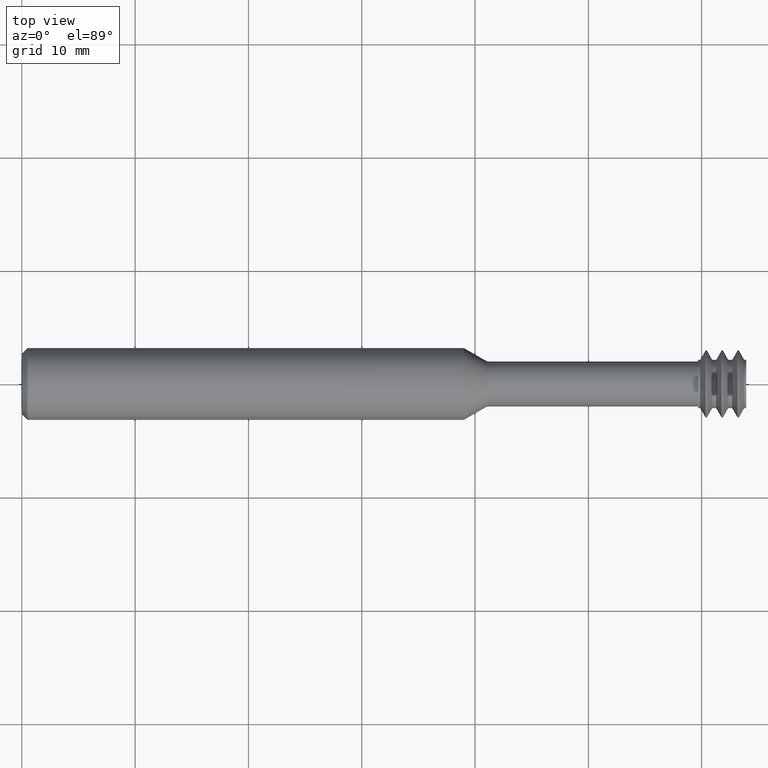
[diagram: clean part render]
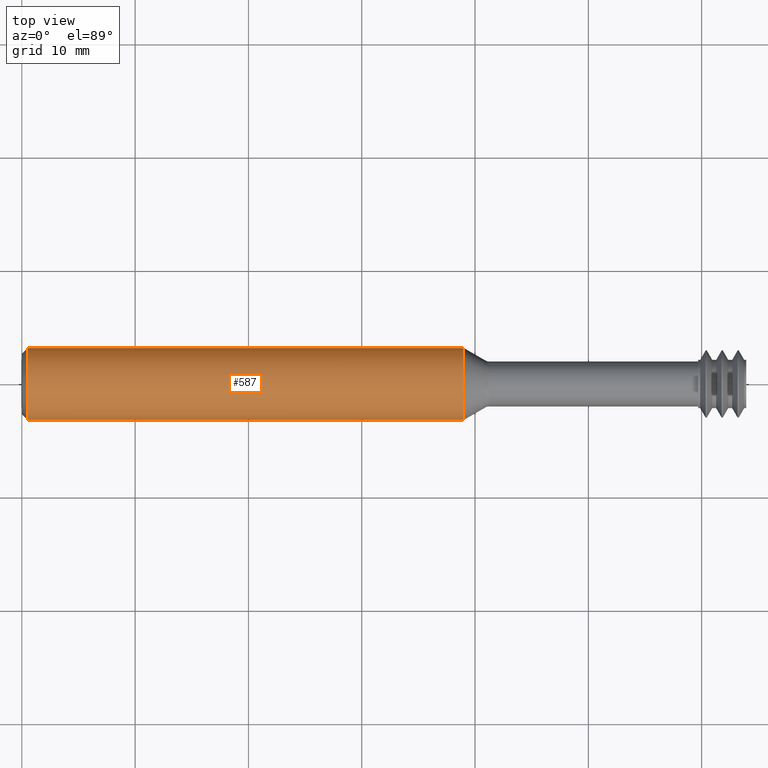
[diagram: same view with one face highlighted and labeled with its STEP entity id]
A machine part, top view. The second image highlights one B-rep face of the part: STEP entity #587.
In plain terms, the highlighted cylindrical surface (edge-blend (fillet) strip) has radius 3.1712 mm, axis along (-1, 0, -0).
Its self-contained STEP definition (entity closure, byte-faithful):
#26 = AXIS2_PLACEMENT_3D ( 'NONE', #208, #594, #847 ) ;
#70 = DIRECTION ( 'NONE',  ( -1.000000000000000000, 2.239313081137374464E-19, -0.000000000000000000 ) ) ;
#92 = CYLINDRICAL_SURFACE ( 'NONE', #820, 0.1248500000000000026 ) ;
#96 = DIRECTION ( 'NONE',  ( -1.000000000000000000, 2.239313081137374464E-19, -0.000000000000000000 ) ) ;
#102 = CARTESIAN_POINT ( 'NONE',  ( 1.535853419665399011, 0.1248500000000000026, 1.528971528735470422E-17 ) ) ;
#122 = EDGE_CURVE ( 'NONE', #505, #201, #393, .T. ) ;
#184 = ORIENTED_EDGE ( 'NONE', *, *, #921, .T. ) ;
#201 = VERTEX_POINT ( 'NONE', #246 ) ;
#208 = CARTESIAN_POINT ( 'NONE',  ( 0.02000000000000005940, -2.040747565273492847E-19, 0.000000000000000000 ) ) ;
#246 = CARTESIAN_POINT ( 'NONE',  ( 0.02000000000000005940, -0.1248500000000000026, 1.528971528735470422E-17 ) ) ;
#279 = VECTOR ( 'NONE', #70, 39.37007874015748143 ) ;
#332 = VECTOR ( 'NONE', #816, 39.37007874015748143 ) ;
#336 = DIRECTION ( 'NONE',  ( -1.000000000000000000, 2.239313081137374464E-19, -0.000000000000000000 ) ) ;
#390 = ORIENTED_EDGE ( 'NONE', *, *, #122, .F. ) ;
#393 = LINE ( 'NONE', #561, #332 ) ;
#452 = AXIS2_PLACEMENT_3D ( 'NONE', #753, #336, #993 ) ;
#467 = CARTESIAN_POINT ( 'NONE',  ( 0.02000000000000005940, 0.1248500000000000026, 0.000000000000000000 ) ) ;
#497 = EDGE_LOOP ( 'NONE', ( #878, #184, #1022, #390 ) ) ;
#503 = CARTESIAN_POINT ( 'NONE',  ( 2.350000000000000089, -7.258347044323575049E-19, 0.000000000000000000 ) ) ;
#505 = VERTEX_POINT ( 'NONE', #624 ) ;
#509 = FACE_OUTER_BOUND ( 'NONE', #497, .T. ) ;
#551 = VERTEX_POINT ( 'NONE', #467 ) ;
#561 = CARTESIAN_POINT ( 'NONE',  ( 2.350000000000000089, -0.1248500000000000026, 0.000000000000000000 ) ) ;
#587 = ADVANCED_FACE ( 'NONE', ( #509 ), #92, .T. ) ;
#594 = DIRECTION ( 'NONE',  ( -1.000000000000000000, 2.239313081137374464E-19, -0.000000000000000000 ) ) ;
#624 = CARTESIAN_POINT ( 'NONE',  ( 1.535853419665399011, -0.1248500000000000026, 0.000000000000000000 ) ) ;
#639 = LINE ( 'NONE', #718, #279 ) ;
#644 = CIRCLE ( 'NONE', #26, 0.1248500000000000026 ) ;
#648 = EDGE_CURVE ( 'NONE', #505, #654, #906, .T. ) ;
#654 = VERTEX_POINT ( 'NONE', #102 ) ;
#718 = CARTESIAN_POINT ( 'NONE',  ( 2.350000000000000089, 0.1248500000000000026, 1.528971528735470422E-17 ) ) ;
#753 = CARTESIAN_POINT ( 'NONE',  ( 1.535853419665399011, -5.435217957017042778E-19, 0.000000000000000000 ) ) ;
#771 = EDGE_CURVE ( 'NONE', #201, #551, #644, .T. ) ;
#816 = DIRECTION ( 'NONE',  ( -1.000000000000000000, 2.239313081137374464E-19, -0.000000000000000000 ) ) ;
#820 = AXIS2_PLACEMENT_3D ( 'NONE', #503, #96, #998 ) ;
#847 = DIRECTION ( 'NONE',  ( 0.000000000000000000, -1.000000000000000000, 0.000000000000000000 ) ) ;
#878 = ORIENTED_EDGE ( 'NONE', *, *, #648, .T. ) ;
#906 = CIRCLE ( 'NONE', #452, 0.1248500000000000026 ) ;
#921 = EDGE_CURVE ( 'NONE', #654, #551, #639, .T. ) ;
#993 = DIRECTION ( 'NONE',  ( 0.000000000000000000, -1.000000000000000000, 0.000000000000000000 ) ) ;
#998 = DIRECTION ( 'NONE',  ( 0.000000000000000000, -1.000000000000000000, 0.000000000000000000 ) ) ;
#1022 = ORIENTED_EDGE ( 'NONE', *, *, #771, .F. ) ;